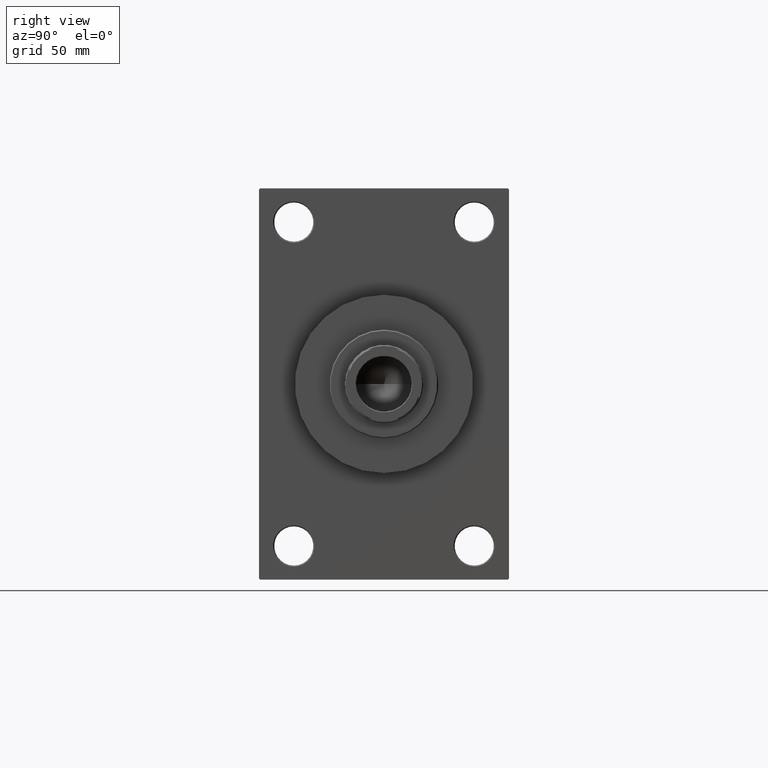
[diagram: clean part render]
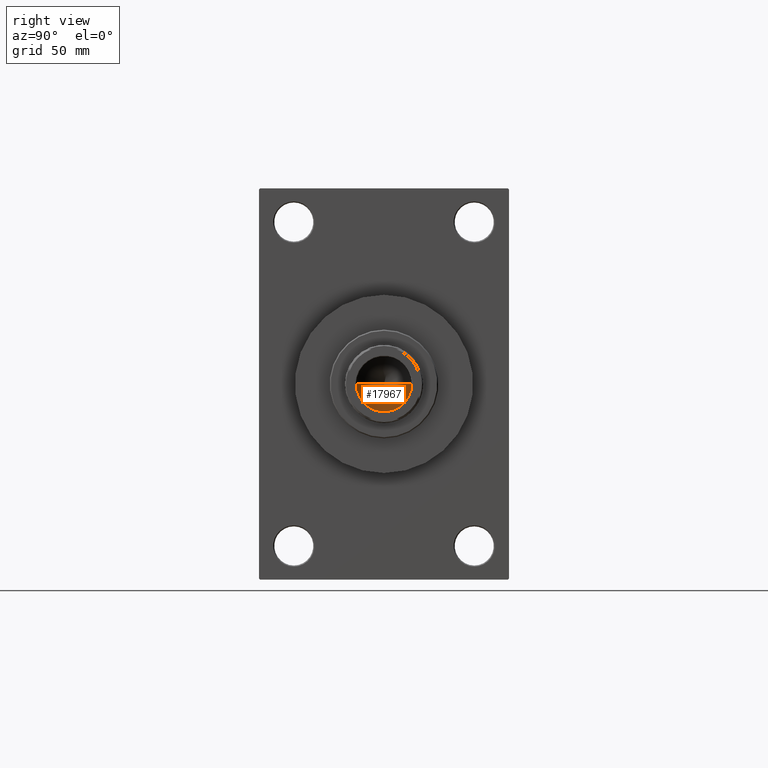
[diagram: same view with one face highlighted and labeled with its STEP entity id]
A machine part, right view. The second image highlights one B-rep face of the part: STEP entity #17967.
In plain terms, the highlighted conical surface has half-angle 59 deg.
Its self-contained STEP definition (entity closure, byte-faithful):
#791 = DIRECTION ( 'NONE',  ( -0.000000000000000000, -0.000000000000000000, 1.000000000000000000 ) ) ;
#1474 = ORIENTED_EDGE ( 'NONE', *, *, #42256, .T. ) ;
#3941 = AXIS2_PLACEMENT_3D ( 'NONE', #46052, #12801, #34716 ) ;
#4254 = VERTEX_POINT ( 'NONE', #46710 ) ;
#5747 = DIRECTION ( 'NONE',  ( 0.8571673007021110013, 0.000000000000000000, 0.5150380749100563760 ) ) ;
#5828 = CARTESIAN_POINT ( 'NONE',  ( -12.74999999999998934, 1.561424668912873928E-15, 151.0000000000000284 ) ) ;
#5989 = CARTESIAN_POINT ( 'NONE',  ( 12.74999999999998934, 0.000000000000000000, 151.0000000000000284 ) ) ;
#6244 = CONICAL_SURFACE ( 'NONE', #3941, 12.74999999999998934, 1.029744258676651869 ) ;
#7676 = VERTEX_POINT ( 'NONE', #37159 ) ;
#12801 = DIRECTION ( 'NONE',  ( -0.000000000000000000, -0.000000000000000000, 1.000000000000000000 ) ) ;
#12974 = CIRCLE ( 'NONE', #19916, 12.74999999999998934 ) ;
#15016 = EDGE_CURVE ( 'NONE', #7676, #4254, #42358, .T. ) ;
#15486 = DIRECTION ( 'NONE',  ( 1.000000000000000000, 0.000000000000000000, 0.000000000000000000 ) ) ;
#17967 = ADVANCED_FACE ( 'NONE', ( #34476 ), #6244, .F. ) ;
#19916 = AXIS2_PLACEMENT_3D ( 'NONE', #34024, #791, #15486 ) ;
#20887 = EDGE_LOOP ( 'NONE', ( #26822, #25014, #1474 ) ) ;
#25014 = ORIENTED_EDGE ( 'NONE', *, *, #15016, .T. ) ;
#26399 = VERTEX_POINT ( 'NONE', #36588 ) ;
#26822 = ORIENTED_EDGE ( 'NONE', *, *, #42304, .F. ) ;
#32299 = LINE ( 'NONE', #5828, #46861 ) ;
#34024 = CARTESIAN_POINT ( 'NONE',  ( 0.000000000000000000, 0.000000000000000000, 151.0000000000000284 ) ) ;
#34476 = FACE_OUTER_BOUND ( 'NONE', #20887, .T. ) ;
#34716 = DIRECTION ( 'NONE',  ( 1.000000000000000000, 0.000000000000000000, 0.000000000000000000 ) ) ;
#36588 = CARTESIAN_POINT ( 'NONE',  ( -12.74999999999998934, 1.561424668912873928E-15, 151.0000000000000284 ) ) ;
#37159 = CARTESIAN_POINT ( 'NONE',  ( -1.410643066818227497E-14, 0.000000000000000000, 143.3390271073986071 ) ) ;
#42256 = EDGE_CURVE ( 'NONE', #4254, #26399, #12974, .T. ) ;
#42304 = EDGE_CURVE ( 'NONE', #7676, #26399, #32299, .T. ) ;
#42358 = LINE ( 'NONE', #5989, #46187 ) ;
#46052 = CARTESIAN_POINT ( 'NONE',  ( 0.000000000000000000, 0.000000000000000000, 151.0000000000000284 ) ) ;
#46072 = DIRECTION ( 'NONE',  ( -0.8571673007021110013, 1.049727191138617093E-16, 0.5150380749100563760 ) ) ;
#46187 = VECTOR ( 'NONE', #5747, 1000.000000000000000 ) ;
#46710 = CARTESIAN_POINT ( 'NONE',  ( 12.74999999999998934, 0.000000000000000000, 151.0000000000000284 ) ) ;
#46861 = VECTOR ( 'NONE', #46072, 1000.000000000000000 ) ;